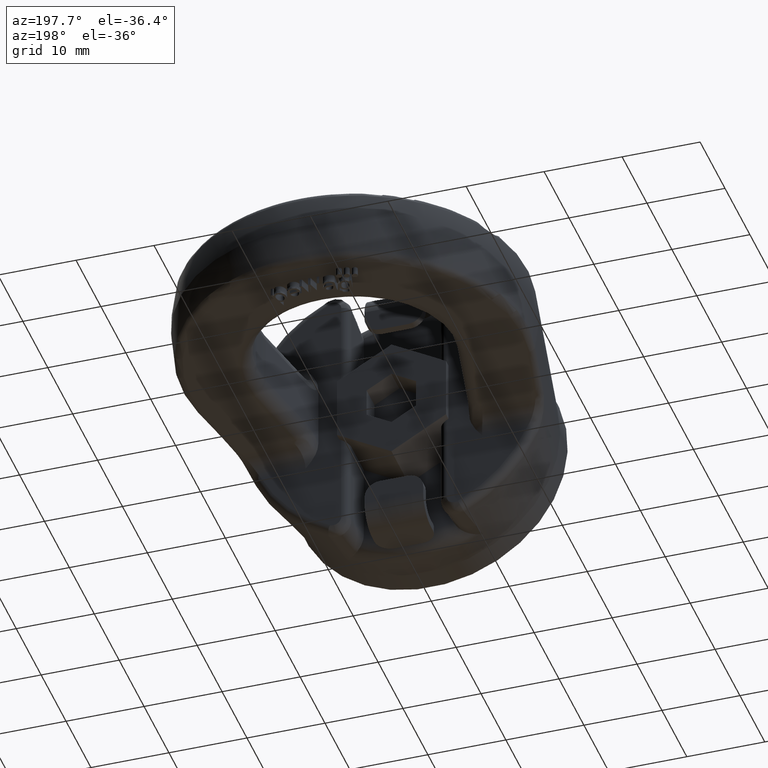
[diagram: clean part render]
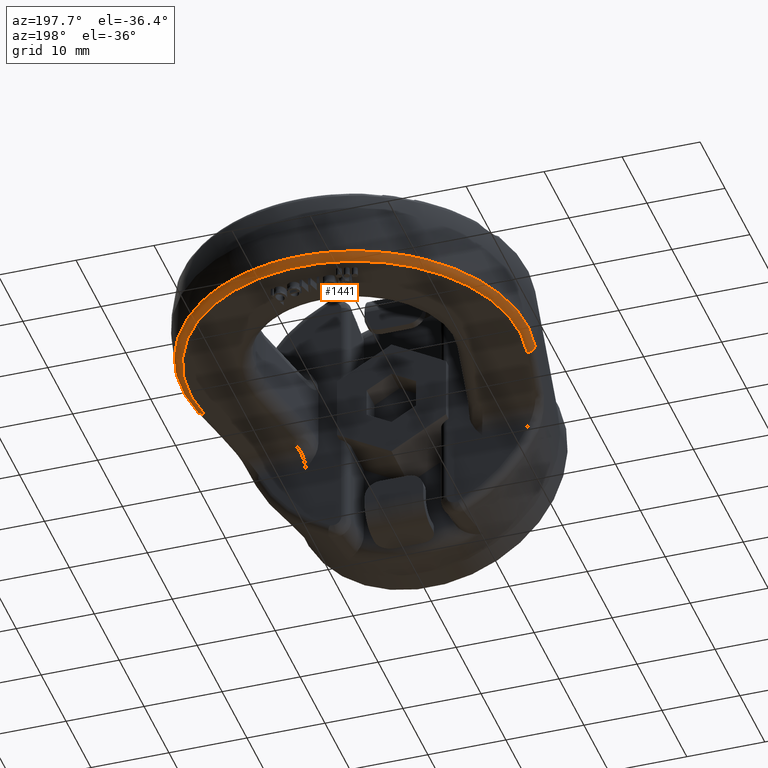
[diagram: same view with one face highlighted and labeled with its STEP entity id]
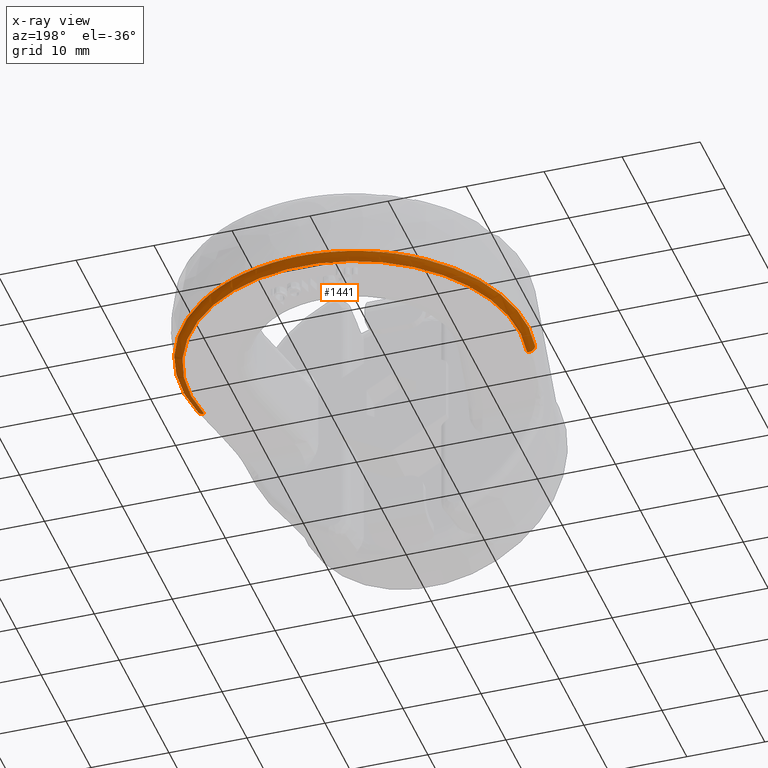
[diagram: x-ray of the same camera — body ghosted, the highlighted face saturated]
A machine part, auxiliary view. The second image highlights one B-rep face of the part: STEP entity #1441.
The next image is the same camera in x-ray: the body ghosted, the highlighted face saturated — about 0% of this face is hidden behind the body in this view.
In plain terms, the highlighted toroidal blend (fillet) surface has major radius 21.1246 mm and minor (blend) radius 1 mm.
Its self-contained STEP definition (entity closure, byte-faithful):
#1021=TOROIDAL_SURFACE('',#5273,21.1246301742776,1.);
#1209=FACE_OUTER_BOUND('',#1972,.T.);
#1441=ADVANCED_FACE('',(#1209),#1021,.T.);
#1686=CIRCLE('',#5145,22.1071711126161);
#1713=CIRCLE('',#5248,21.1246301742776);
#1719=CIRCLE('',#5271,1.);
#1720=CIRCLE('',#5272,1.);
#1972=EDGE_LOOP('',(#3405,#3406,#3407,#3408));
#3405=ORIENTED_EDGE('',*,*,#4652,.T.);
#3406=ORIENTED_EDGE('',*,*,#4604,.F.);
#3407=ORIENTED_EDGE('',*,*,#4653,.F.);
#3408=ORIENTED_EDGE('',*,*,#4394,.F.);
#3983=VERTEX_POINT('',#6743);
#3992=VERTEX_POINT('',#6815);
#4121=VERTEX_POINT('',#8277);
#4122=VERTEX_POINT('',#8279);
#4394=EDGE_CURVE('',#3992,#3983,#1686,.T.);
#4604=EDGE_CURVE('',#4121,#4122,#1713,.T.);
#4652=EDGE_CURVE('',#3992,#4122,#1719,.T.);
#4653=EDGE_CURVE('',#3983,#4121,#1720,.T.);
#5145=AXIS2_PLACEMENT_3D('',#6893,#5503,#5504);
#5248=AXIS2_PLACEMENT_3D('',#8278,#5832,#5833);
#5271=AXIS2_PLACEMENT_3D('',#8635,#5897,#5898);
#5272=AXIS2_PLACEMENT_3D('',#8648,#5899,#5900);
#5273=AXIS2_PLACEMENT_3D('',#8649,#5901,#5902);
#5503=DIRECTION('',(-2.34291072916505E-15,-1.0842021724855E-16,1.));
#5504=DIRECTION('',(-2.78777225301435E-31,1.,1.17703219498774E-16));
#5832=DIRECTION('',(2.34291072916505E-15,1.0842021724855E-16,-1.));
#5833=DIRECTION('',(-2.18807705905196E-31,1.,1.23177787847554E-16));
#5897=DIRECTION('',(0.197340270513563,0.980335053761536,4.6235063708256E-16));
#5898=DIRECTION('',(0.980335053761536,-0.197340270513564,2.60208521396521E-15));
#5899=DIRECTION('',(0.197340270513571,-0.980335053761535,1.14701223711359E-15));
#5900=DIRECTION('',(-0.980335053761536,-0.197340270513571,-2.60208521396521E-15));
#5901=DIRECTION('',(-2.34291072916505E-15,-1.0842021724855E-16,1.));
#5902=DIRECTION('',(-2.78557235691303E-31,1.,1.17610337143191E-16));
#6743=CARTESIAN_POINT('',(-21.6724347812019,26.1373648723466,-4.18604651162796));
#6815=CARTESIAN_POINT('',(21.6724347812021,26.1373648723467,-4.18604651162788));
#6893=CARTESIAN_POINT('',(9.80753328487695E-15,30.5,-4.18604651162791));
#8277=CARTESIAN_POINT('',(-20.709215457593,26.3312597669089,-5.00000000000005));
#8278=CARTESIAN_POINT('',(1.17145536458253E-14,30.5,-5.));
#8279=CARTESIAN_POINT('',(20.709215457593,26.3312597669091,-4.99999999999996));
#8635=CARTESIAN_POINT('',(20.7092154575931,26.331259766909,-3.99999999999996));
#8648=CARTESIAN_POINT('',(-20.709215457593,26.3312597669089,-4.00000000000005));
#8649=CARTESIAN_POINT('',(9.3716429166602E-15,30.5,-4.));